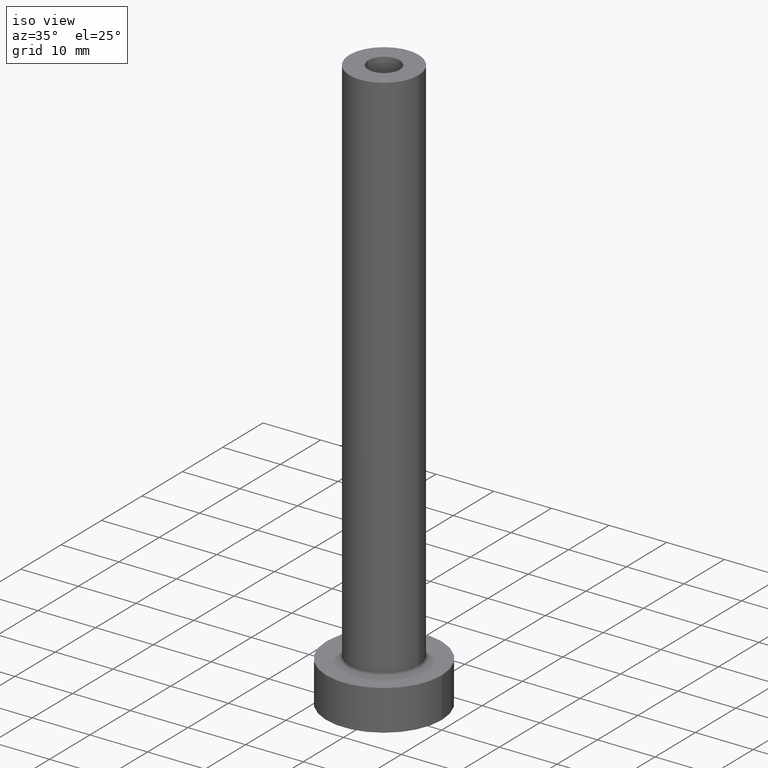
[diagram: clean part render]
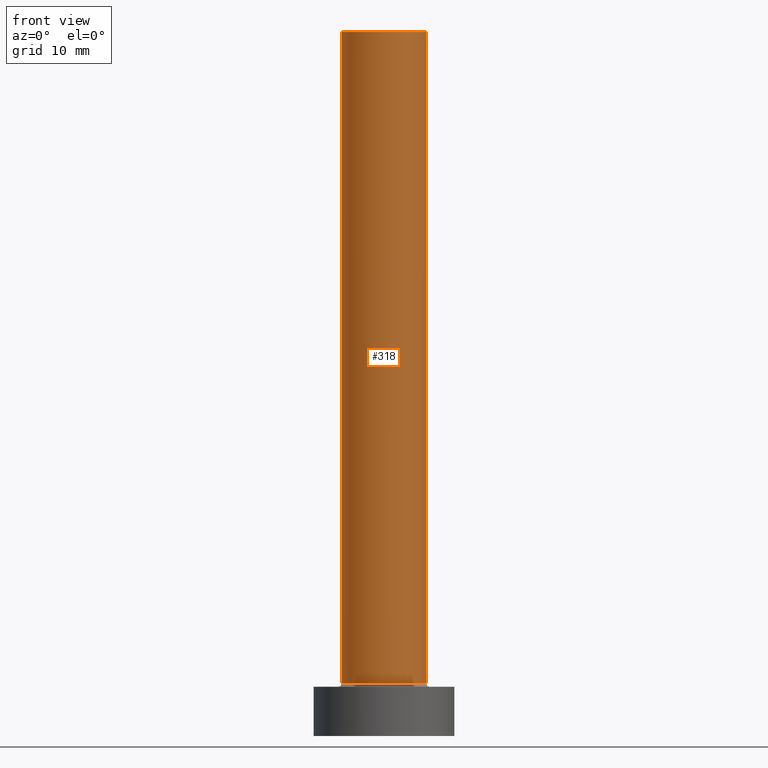
[diagram: tour spotlight — one face highlighted and labeled with its STEP entity id]
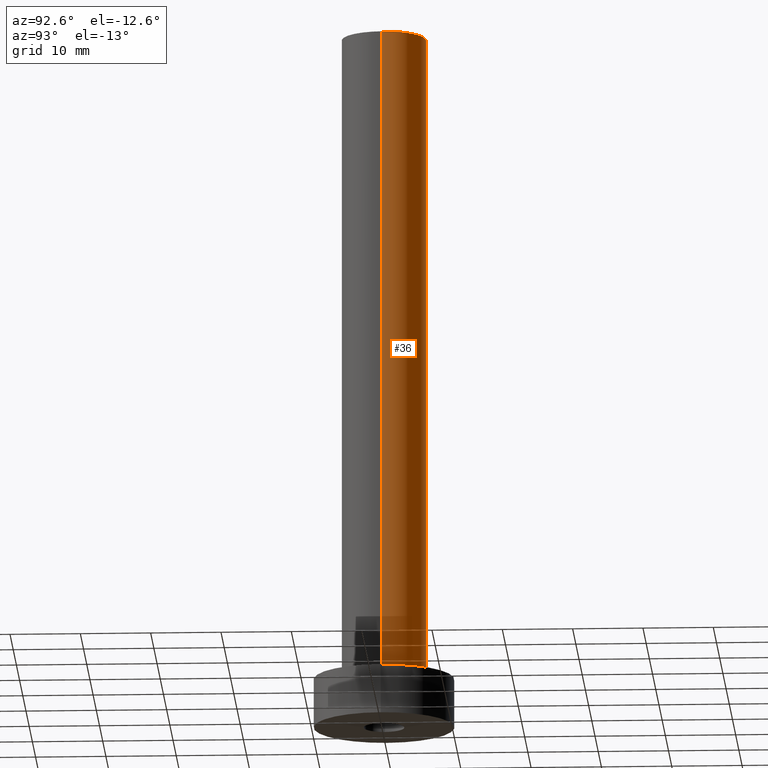
[diagram: tour spotlight — one face highlighted and labeled with its STEP entity id]
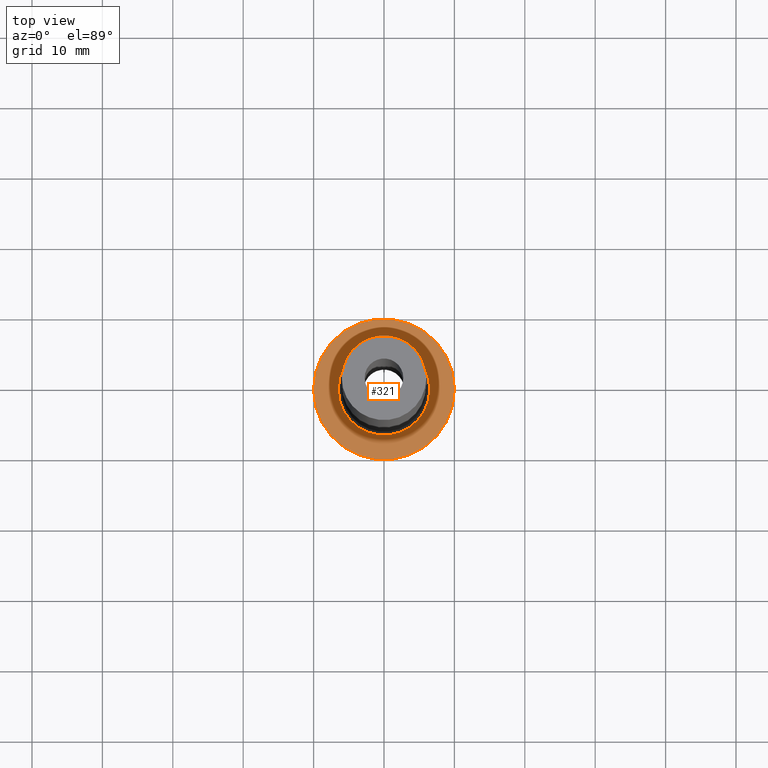
[diagram: tour spotlight — one face highlighted and labeled with its STEP entity id]
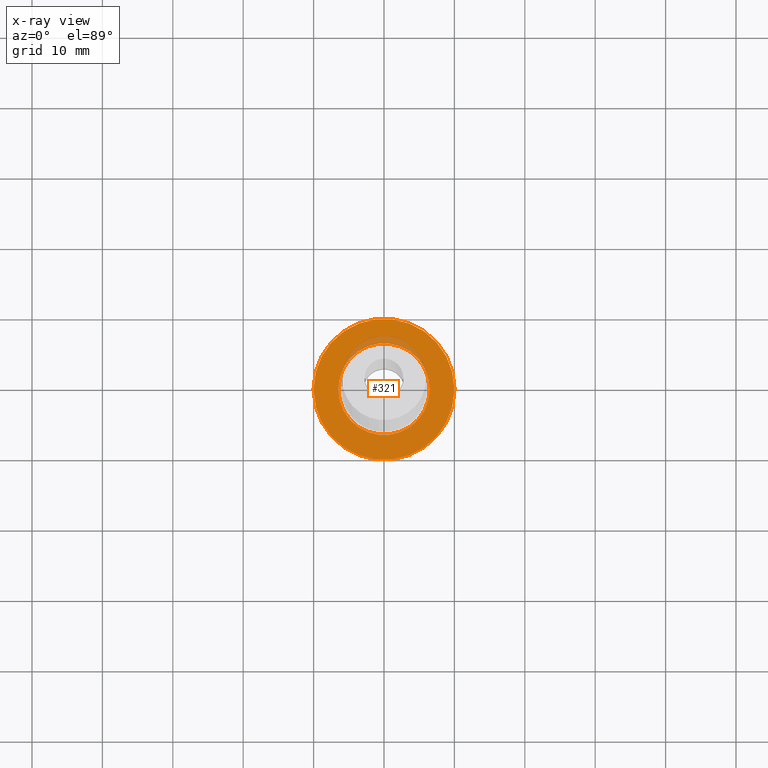
[diagram: x-ray of the same camera — body ghosted, this tour face saturated]
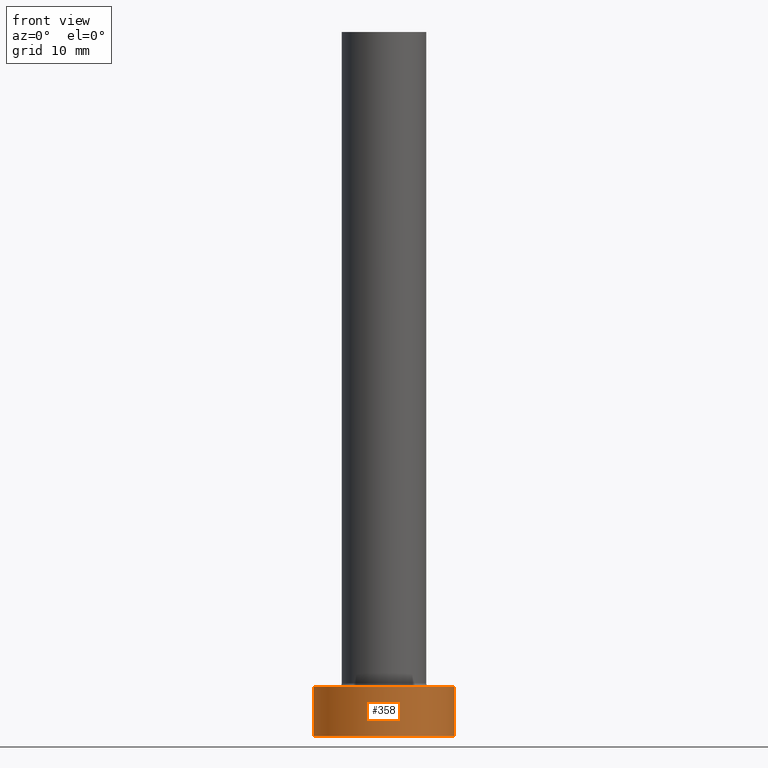
[diagram: tour spotlight — one face highlighted and labeled with its STEP entity id]
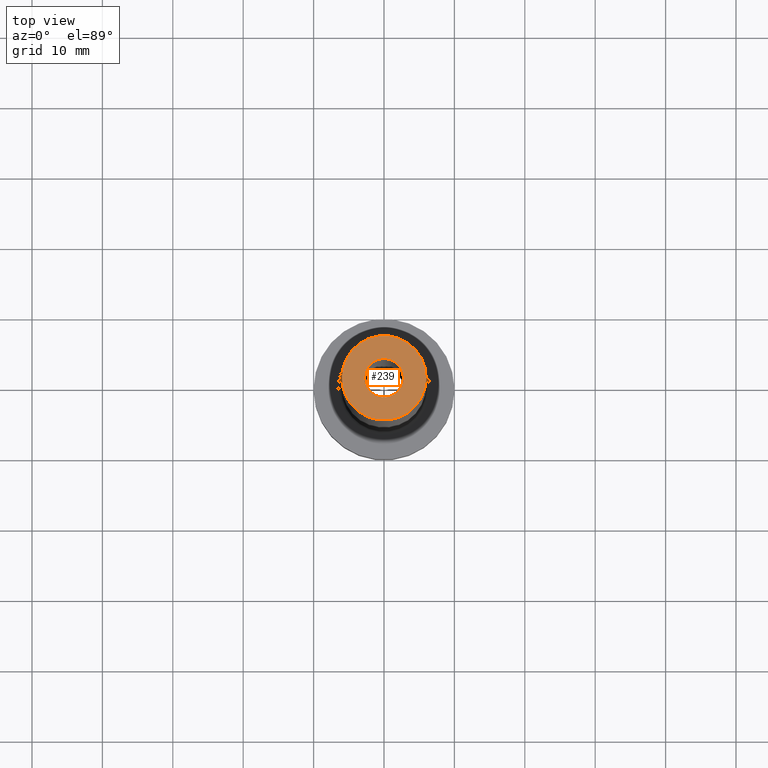
[diagram: tour spotlight — one face highlighted and labeled with its STEP entity id]
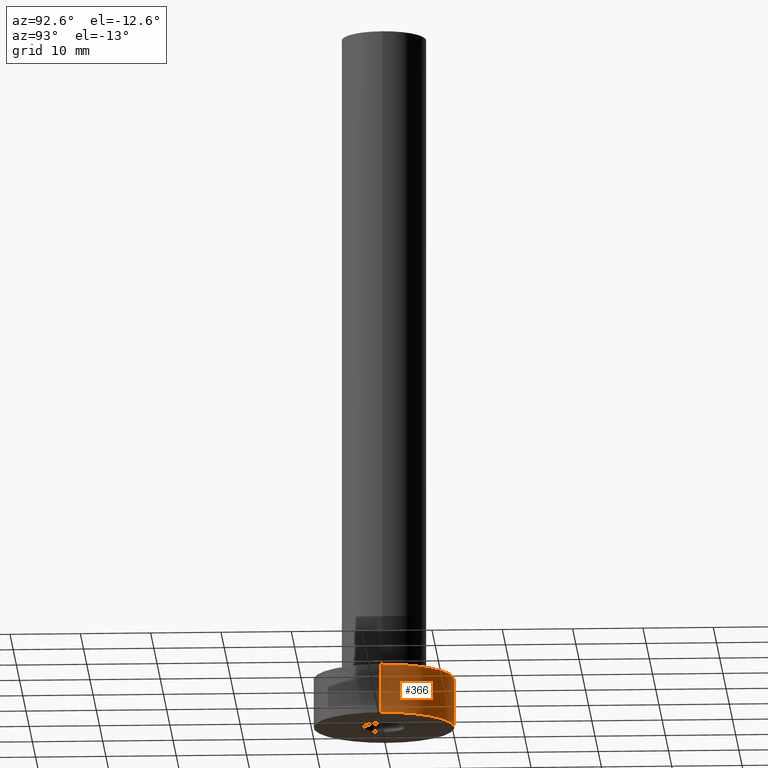
[diagram: tour spotlight — one face highlighted and labeled with its STEP entity id]
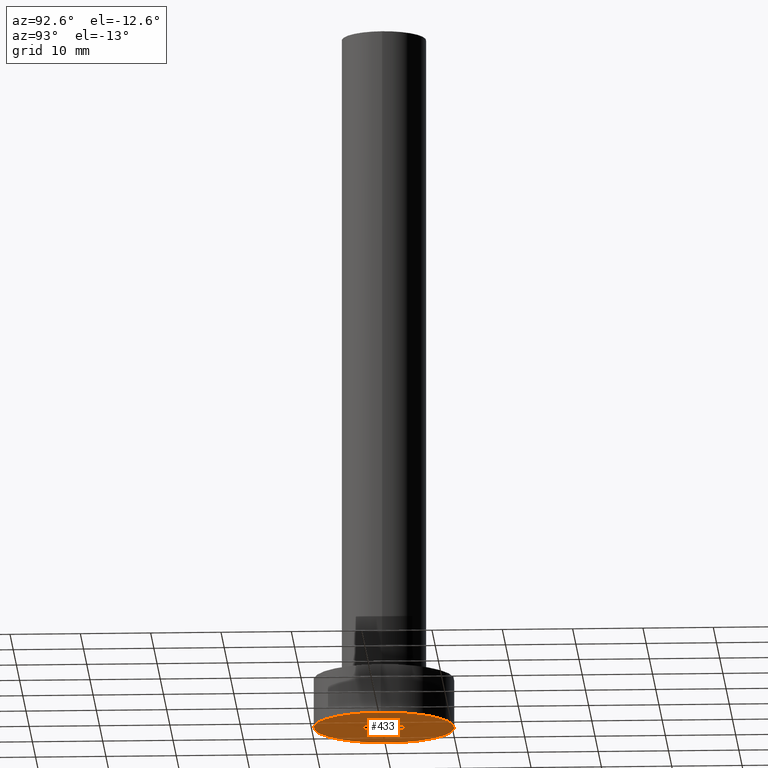
[diagram: tour spotlight — one face highlighted and labeled with its STEP entity id]
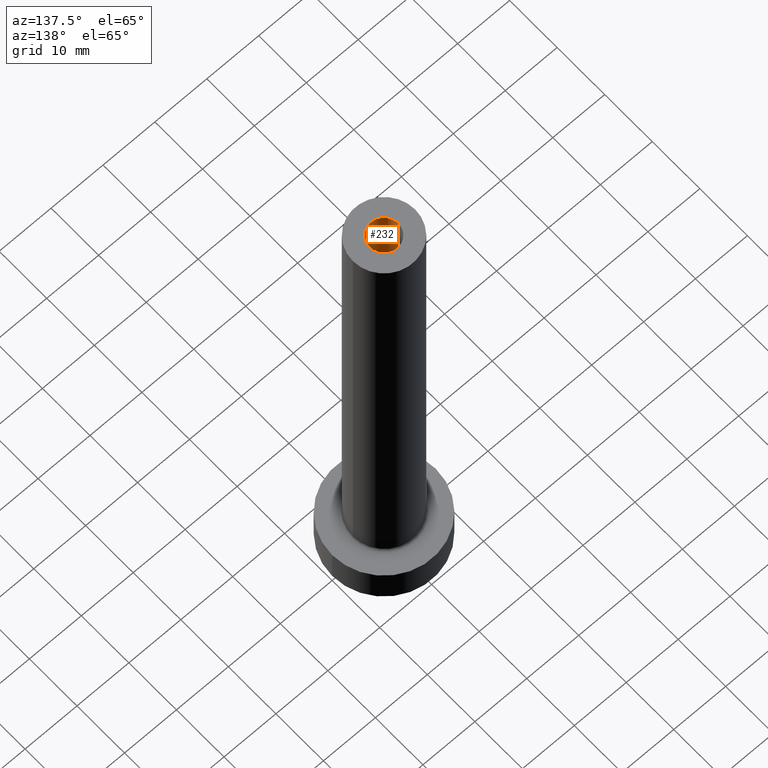
[diagram: tour spotlight — one face highlighted and labeled with its STEP entity id]
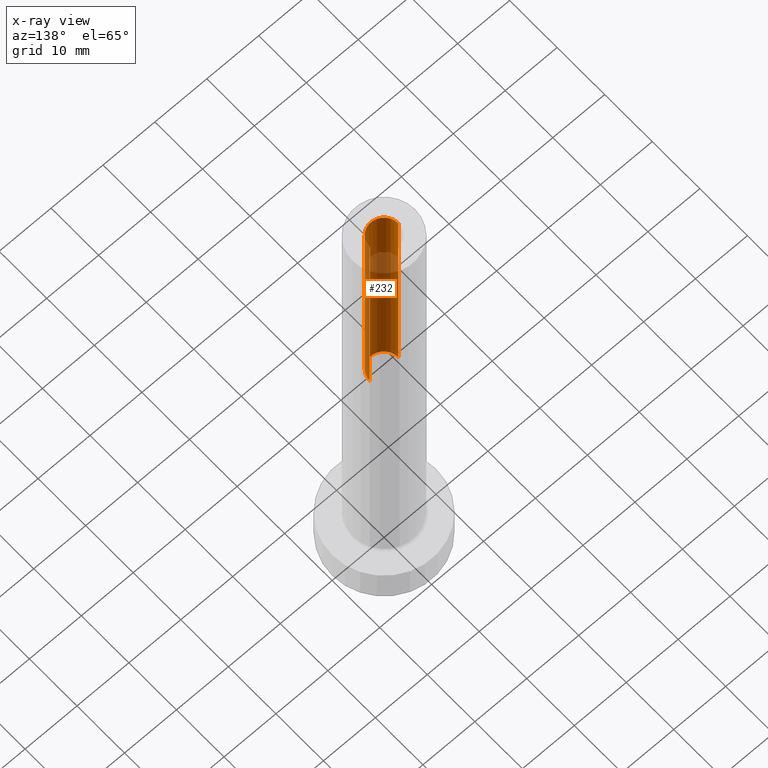
[diagram: x-ray of the same camera — body ghosted, this tour face saturated]
A machine part: a face-by-face anatomy tour. The part has 14 B-rep faces; the first image is the clean iso view, then the 8 largest visible faces are spotlighted one at a time (largest first), each with its STEP entity span.

Face 1 — front view, entity #318. In plain terms, the highlighted cylindrical surface (partial cylindrical patch) has radius 6 mm, axis along (-0, -0, -1).
Definition (entity closure, byte-faithful):
#3 = CARTESIAN_POINT ( 'NONE',  ( 0.000000000000000000, 0.000000000000000000, 100.0000000000000000 ) ) ;
#11 = VERTEX_POINT ( 'NONE', #50 ) ;
#13 = CARTESIAN_POINT ( 'NONE',  ( 0.000000000000000000, 0.000000000000000000, 100.0000000000000000 ) ) ;
#18 = DIRECTION ( 'NONE',  ( -0.000000000000000000, -0.000000000000000000, -1.000000000000000000 ) ) ;
#24 = CARTESIAN_POINT ( 'NONE',  ( 0.000000000000000000, 0.000000000000000000, 7.500000000000007105 ) ) ;
#30 = ORIENTED_EDGE ( 'NONE', *, *, #444, .T. ) ;
#50 = CARTESIAN_POINT ( 'NONE',  ( 6.000000000000000888, 7.347880794884119736E-16, 7.500000000000007105 ) ) ;
#69 = CIRCLE ( 'NONE', #357, 6.000000000000000888 ) ;
#83 = CIRCLE ( 'NONE', #430, 6.000000000000000888 ) ;
#85 = LINE ( 'NONE', #233, #288 ) ;
#99 = CYLINDRICAL_SURFACE ( 'NONE', #417, 6.000000000000000888 ) ;
#128 = CARTESIAN_POINT ( 'NONE',  ( -6.000000000000000888, 0.000000000000000000, 7.500000000000007105 ) ) ;
#133 = DIRECTION ( 'NONE',  ( -0.000000000000000000, -0.000000000000000000, -1.000000000000000000 ) ) ;
#134 = EDGE_CURVE ( 'NONE', #344, #11, #85, .T. ) ;
#141 = EDGE_CURVE ( 'NONE', #199, #11, #83, .T. ) ;
#146 = EDGE_LOOP ( 'NONE', ( #411, #393, #30, #157 ) ) ;
#157 = ORIENTED_EDGE ( 'NONE', *, *, #141, .T. ) ;
#165 = DIRECTION ( 'NONE',  ( 0.000000000000000000, 0.000000000000000000, 1.000000000000000000 ) ) ;
#171 = VERTEX_POINT ( 'NONE', #387 ) ;
#199 = VERTEX_POINT ( 'NONE', #128 ) ;
#203 = VECTOR ( 'NONE', #455, 1000.000000000000000 ) ;
#209 = DIRECTION ( 'NONE',  ( 1.000000000000000000, 0.000000000000000000, 0.000000000000000000 ) ) ;
#233 = CARTESIAN_POINT ( 'NONE',  ( 6.000000000000000888, 7.347880794884119736E-16, 100.0000000000000000 ) ) ;
#284 = FACE_OUTER_BOUND ( 'NONE', #146, .T. ) ;
#288 = VECTOR ( 'NONE', #18, 1000.000000000000000 ) ;
#305 = DIRECTION ( 'NONE',  ( 1.000000000000000000, 0.000000000000000000, 0.000000000000000000 ) ) ;
#306 = CARTESIAN_POINT ( 'NONE',  ( -6.000000000000000888, 0.000000000000000000, 100.0000000000000000 ) ) ;
#311 = DIRECTION ( 'NONE',  ( 0.000000000000000000, 0.000000000000000000, 1.000000000000000000 ) ) ;
#318 = ADVANCED_FACE ( 'NONE', ( #284 ), #99, .T. ) ;
#344 = VERTEX_POINT ( 'NONE', #425 ) ;
#357 = AXIS2_PLACEMENT_3D ( 'NONE', #13, #311, #209 ) ;
#387 = CARTESIAN_POINT ( 'NONE',  ( -6.000000000000000888, 0.000000000000000000, 100.0000000000000000 ) ) ;
#393 = ORIENTED_EDGE ( 'NONE', *, *, #461, .F. ) ;
#411 = ORIENTED_EDGE ( 'NONE', *, *, #134, .F. ) ;
#416 = LINE ( 'NONE', #306, #203 ) ;
#417 = AXIS2_PLACEMENT_3D ( 'NONE', #3, #133, #431 ) ;
#425 = CARTESIAN_POINT ( 'NONE',  ( 6.000000000000000888, 7.347880794884119736E-16, 100.0000000000000000 ) ) ;
#430 = AXIS2_PLACEMENT_3D ( 'NONE', #24, #165, #305 ) ;
#431 = DIRECTION ( 'NONE',  ( -1.000000000000000000, 0.000000000000000000, 0.000000000000000000 ) ) ;
#444 = EDGE_CURVE ( 'NONE', #171, #199, #416, .T. ) ;
#455 = DIRECTION ( 'NONE',  ( -0.000000000000000000, -0.000000000000000000, -1.000000000000000000 ) ) ;
#461 = EDGE_CURVE ( 'NONE', #171, #344, #69, .T. ) ;

Face 2 — auxiliary view, entity #36. In plain terms, the highlighted cylindrical surface (partial cylindrical patch) has radius 6 mm, axis along (-0, -0, -1).
Definition (entity closure, byte-faithful):
#11 = VERTEX_POINT ( 'NONE', #50 ) ;
#18 = DIRECTION ( 'NONE',  ( -0.000000000000000000, -0.000000000000000000, -1.000000000000000000 ) ) ;
#19 = CARTESIAN_POINT ( 'NONE',  ( 0.000000000000000000, 0.000000000000000000, 7.500000000000007105 ) ) ;
#36 = ADVANCED_FACE ( 'NONE', ( #206 ), #263, .T. ) ;
#50 = CARTESIAN_POINT ( 'NONE',  ( 6.000000000000000888, 7.347880794884119736E-16, 7.500000000000007105 ) ) ;
#70 = EDGE_CURVE ( 'NONE', #11, #199, #111, .T. ) ;
#80 = ORIENTED_EDGE ( 'NONE', *, *, #354, .F. ) ;
#85 = LINE ( 'NONE', #233, #288 ) ;
#111 = CIRCLE ( 'NONE', #384, 6.000000000000000888 ) ;
#128 = CARTESIAN_POINT ( 'NONE',  ( -6.000000000000000888, 0.000000000000000000, 7.500000000000007105 ) ) ;
#134 = EDGE_CURVE ( 'NONE', #344, #11, #85, .T. ) ;
#153 = ORIENTED_EDGE ( 'NONE', *, *, #70, .T. ) ;
#169 = CIRCLE ( 'NONE', #432, 6.000000000000000888 ) ;
#171 = VERTEX_POINT ( 'NONE', #387 ) ;
#176 = EDGE_LOOP ( 'NONE', ( #80, #329, #153, #228 ) ) ;
#199 = VERTEX_POINT ( 'NONE', #128 ) ;
#201 = CARTESIAN_POINT ( 'NONE',  ( 0.000000000000000000, 0.000000000000000000, 100.0000000000000000 ) ) ;
#203 = VECTOR ( 'NONE', #455, 1000.000000000000000 ) ;
#206 = FACE_OUTER_BOUND ( 'NONE', #176, .T. ) ;
#227 = DIRECTION ( 'NONE',  ( -0.000000000000000000, -0.000000000000000000, -1.000000000000000000 ) ) ;
#228 = ORIENTED_EDGE ( 'NONE', *, *, #444, .F. ) ;
#233 = CARTESIAN_POINT ( 'NONE',  ( 6.000000000000000888, 7.347880794884119736E-16, 100.0000000000000000 ) ) ;
#263 = CYLINDRICAL_SURFACE ( 'NONE', #404, 6.000000000000000888 ) ;
#265 = DIRECTION ( 'NONE',  ( 1.000000000000000000, 0.000000000000000000, 0.000000000000000000 ) ) ;
#288 = VECTOR ( 'NONE', #18, 1000.000000000000000 ) ;
#306 = CARTESIAN_POINT ( 'NONE',  ( -6.000000000000000888, 0.000000000000000000, 100.0000000000000000 ) ) ;
#329 = ORIENTED_EDGE ( 'NONE', *, *, #134, .T. ) ;
#339 = DIRECTION ( 'NONE',  ( 0.000000000000000000, 0.000000000000000000, 1.000000000000000000 ) ) ;
#344 = VERTEX_POINT ( 'NONE', #425 ) ;
#351 = CARTESIAN_POINT ( 'NONE',  ( 0.000000000000000000, 0.000000000000000000, 100.0000000000000000 ) ) ;
#354 = EDGE_CURVE ( 'NONE', #344, #171, #169, .T. ) ;
#370 = DIRECTION ( 'NONE',  ( -1.000000000000000000, 0.000000000000000000, 0.000000000000000000 ) ) ;
#373 = DIRECTION ( 'NONE',  ( 1.000000000000000000, 0.000000000000000000, 0.000000000000000000 ) ) ;
#384 = AXIS2_PLACEMENT_3D ( 'NONE', #19, #450, #373 ) ;
#387 = CARTESIAN_POINT ( 'NONE',  ( -6.000000000000000888, 0.000000000000000000, 100.0000000000000000 ) ) ;
#404 = AXIS2_PLACEMENT_3D ( 'NONE', #201, #227, #370 ) ;
#416 = LINE ( 'NONE', #306, #203 ) ;
#425 = CARTESIAN_POINT ( 'NONE',  ( 6.000000000000000888, 7.347880794884119736E-16, 100.0000000000000000 ) ) ;
#432 = AXIS2_PLACEMENT_3D ( 'NONE', #351, #339, #265 ) ;
#444 = EDGE_CURVE ( 'NONE', #171, #199, #416, .T. ) ;
#450 = DIRECTION ( 'NONE',  ( 0.000000000000000000, 0.000000000000000000, 1.000000000000000000 ) ) ;
#455 = DIRECTION ( 'NONE',  ( -0.000000000000000000, -0.000000000000000000, -1.000000000000000000 ) ) ;

Face 3 — top view, entity #321. An x-ray twin of the same camera follows (body ghosted, this face saturated) — the face is partly hidden behind the body. In plain terms, the highlighted planar face has unit normal (0, 0, 1).
Definition (entity closure, byte-faithful):
#38 = EDGE_CURVE ( 'NONE', #408, #48, #104, .T. ) ;
#48 = VERTEX_POINT ( 'NONE', #337 ) ;
#49 = ORIENTED_EDGE ( 'NONE', *, *, #213, .T. ) ;
#81 = DIRECTION ( 'NONE',  ( 0.000000000000000000, 0.000000000000000000, 1.000000000000000000 ) ) ;
#84 = EDGE_LOOP ( 'NONE', ( #196, #360 ) ) ;
#91 = DIRECTION ( 'NONE',  ( 1.000000000000000000, 0.000000000000000000, -0.000000000000000000 ) ) ;
#104 = CIRCLE ( 'NONE', #173, 6.500000000000000888 ) ;
#110 = CARTESIAN_POINT ( 'NONE',  ( 0.000000000000000000, 0.000000000000000000, 7.000000000000000000 ) ) ;
#115 = DIRECTION ( 'NONE',  ( 1.000000000000000000, 0.000000000000000000, 0.000000000000000000 ) ) ;
#139 = CARTESIAN_POINT ( 'NONE',  ( 6.500000000000000888, 0.000000000000000000, 7.000000000000002665 ) ) ;
#147 = CARTESIAN_POINT ( 'NONE',  ( -10.00000000000000000, 0.000000000000000000, 7.000000000000000000 ) ) ;
#172 = DIRECTION ( 'NONE',  ( 0.000000000000000000, 0.000000000000000000, 1.000000000000000000 ) ) ;
#173 = AXIS2_PLACEMENT_3D ( 'NONE', #407, #340, #198 ) ;
#179 = DIRECTION ( 'NONE',  ( 1.000000000000000000, 0.000000000000000000, 0.000000000000000000 ) ) ;
#185 = VERTEX_POINT ( 'NONE', #426 ) ;
#196 = ORIENTED_EDGE ( 'NONE', *, *, #38, .T. ) ;
#198 = DIRECTION ( 'NONE',  ( 1.000000000000000000, 0.000000000000000000, 0.000000000000000000 ) ) ;
#213 = EDGE_CURVE ( 'NONE', #395, #185, #262, .T. ) ;
#216 = CARTESIAN_POINT ( 'NONE',  ( 0.000000000000000000, 0.000000000000000000, 7.000000000000000000 ) ) ;
#241 = AXIS2_PLACEMENT_3D ( 'NONE', #216, #172, #91 ) ;
#258 = DIRECTION ( 'NONE',  ( -0.000000000000000000, -0.000000000000000000, -1.000000000000000000 ) ) ;
#262 = CIRCLE ( 'NONE', #457, 10.00000000000000000 ) ;
#267 = FACE_OUTER_BOUND ( 'NONE', #291, .T. ) ;
#274 = PLANE ( 'NONE',  #241 ) ;
#276 = CARTESIAN_POINT ( 'NONE',  ( 0.000000000000000000, 0.000000000000000000, 7.000000000000000000 ) ) ;
#291 = EDGE_LOOP ( 'NONE', ( #49, #293 ) ) ;
#293 = ORIENTED_EDGE ( 'NONE', *, *, #375, .T. ) ;
#299 = CIRCLE ( 'NONE', #362, 10.00000000000000000 ) ;
#321 = ADVANCED_FACE ( 'NONE', ( #346, #267 ), #274, .T. ) ;
#331 = CIRCLE ( 'NONE', #372, 6.500000000000000888 ) ;
#337 = CARTESIAN_POINT ( 'NONE',  ( -6.500000000000000888, 7.960204194457796463E-16, 7.000000000000002665 ) ) ;
#340 = DIRECTION ( 'NONE',  ( -0.000000000000000000, -0.000000000000000000, -1.000000000000000000 ) ) ;
#343 = DIRECTION ( 'NONE',  ( 0.000000000000000000, 0.000000000000000000, 1.000000000000000000 ) ) ;
#346 = FACE_BOUND ( 'NONE', #84, .T. ) ;
#360 = ORIENTED_EDGE ( 'NONE', *, *, #385, .T. ) ;
#362 = AXIS2_PLACEMENT_3D ( 'NONE', #442, #81, #115 ) ;
#368 = DIRECTION ( 'NONE',  ( 1.000000000000000000, 0.000000000000000000, 0.000000000000000000 ) ) ;
#372 = AXIS2_PLACEMENT_3D ( 'NONE', #110, #258, #368 ) ;
#375 = EDGE_CURVE ( 'NONE', #185, #395, #299, .T. ) ;
#385 = EDGE_CURVE ( 'NONE', #48, #408, #331, .T. ) ;
#395 = VERTEX_POINT ( 'NONE', #147 ) ;
#407 = CARTESIAN_POINT ( 'NONE',  ( 0.000000000000000000, 0.000000000000000000, 7.000000000000000000 ) ) ;
#408 = VERTEX_POINT ( 'NONE', #139 ) ;
#426 = CARTESIAN_POINT ( 'NONE',  ( 10.00000000000000000, 1.224646799147353256E-15, 7.000000000000000000 ) ) ;
#442 = CARTESIAN_POINT ( 'NONE',  ( 0.000000000000000000, 0.000000000000000000, 7.000000000000000000 ) ) ;
#457 = AXIS2_PLACEMENT_3D ( 'NONE', #276, #343, #179 ) ;

Face 4 — front view, entity #358. In plain terms, the highlighted cylindrical surface (partial cylindrical patch) has radius 10 mm, axis along (-0, -0, -1).
Definition (entity closure, byte-faithful):
#10 = CARTESIAN_POINT ( 'NONE',  ( -10.00000000000000000, 0.000000000000000000, 7.000000000000000000 ) ) ;
#20 = VERTEX_POINT ( 'NONE', #259 ) ;
#43 = LINE ( 'NONE', #118, #180 ) ;
#53 = FACE_OUTER_BOUND ( 'NONE', #328, .T. ) ;
#68 = AXIS2_PLACEMENT_3D ( 'NONE', #240, #312, #92 ) ;
#82 = EDGE_CURVE ( 'NONE', #185, #376, #43, .T. ) ;
#88 = CARTESIAN_POINT ( 'NONE',  ( 0.000000000000000000, 0.000000000000000000, 7.000000000000000000 ) ) ;
#92 = DIRECTION ( 'NONE',  ( 1.000000000000000000, 0.000000000000000000, 0.000000000000000000 ) ) ;
#118 = CARTESIAN_POINT ( 'NONE',  ( 10.00000000000000000, 1.224646799147353256E-15, 7.000000000000000000 ) ) ;
#147 = CARTESIAN_POINT ( 'NONE',  ( -10.00000000000000000, 0.000000000000000000, 7.000000000000000000 ) ) ;
#149 = ORIENTED_EDGE ( 'NONE', *, *, #186, .T. ) ;
#156 = CIRCLE ( 'NONE', #68, 10.00000000000000000 ) ;
#164 = DIRECTION ( 'NONE',  ( -0.000000000000000000, -0.000000000000000000, -1.000000000000000000 ) ) ;
#179 = DIRECTION ( 'NONE',  ( 1.000000000000000000, 0.000000000000000000, 0.000000000000000000 ) ) ;
#180 = VECTOR ( 'NONE', #412, 1000.000000000000000 ) ;
#185 = VERTEX_POINT ( 'NONE', #426 ) ;
#186 = EDGE_CURVE ( 'NONE', #20, #376, #156, .T. ) ;
#212 = VECTOR ( 'NONE', #222, 1000.000000000000000 ) ;
#213 = EDGE_CURVE ( 'NONE', #395, #185, #262, .T. ) ;
#222 = DIRECTION ( 'NONE',  ( -0.000000000000000000, -0.000000000000000000, -1.000000000000000000 ) ) ;
#240 = CARTESIAN_POINT ( 'NONE',  ( 0.000000000000000000, 0.000000000000000000, 0.000000000000000000 ) ) ;
#243 = ORIENTED_EDGE ( 'NONE', *, *, #213, .F. ) ;
#255 = CARTESIAN_POINT ( 'NONE',  ( 10.00000000000000000, 1.224646799147353256E-15, 0.000000000000000000 ) ) ;
#259 = CARTESIAN_POINT ( 'NONE',  ( -10.00000000000000000, 0.000000000000000000, 0.000000000000000000 ) ) ;
#262 = CIRCLE ( 'NONE', #457, 10.00000000000000000 ) ;
#276 = CARTESIAN_POINT ( 'NONE',  ( 0.000000000000000000, 0.000000000000000000, 7.000000000000000000 ) ) ;
#285 = AXIS2_PLACEMENT_3D ( 'NONE', #88, #164, #342 ) ;
#294 = LINE ( 'NONE', #10, #212 ) ;
#304 = CYLINDRICAL_SURFACE ( 'NONE', #285, 10.00000000000000000 ) ;
#312 = DIRECTION ( 'NONE',  ( 0.000000000000000000, 0.000000000000000000, 1.000000000000000000 ) ) ;
#328 = EDGE_LOOP ( 'NONE', ( #445, #243, #334, #149 ) ) ;
#334 = ORIENTED_EDGE ( 'NONE', *, *, #401, .T. ) ;
#342 = DIRECTION ( 'NONE',  ( -1.000000000000000000, 0.000000000000000000, 0.000000000000000000 ) ) ;
#343 = DIRECTION ( 'NONE',  ( 0.000000000000000000, 0.000000000000000000, 1.000000000000000000 ) ) ;
#358 = ADVANCED_FACE ( 'NONE', ( #53 ), #304, .T. ) ;
#376 = VERTEX_POINT ( 'NONE', #255 ) ;
#395 = VERTEX_POINT ( 'NONE', #147 ) ;
#401 = EDGE_CURVE ( 'NONE', #395, #20, #294, .T. ) ;
#412 = DIRECTION ( 'NONE',  ( -0.000000000000000000, -0.000000000000000000, -1.000000000000000000 ) ) ;
#426 = CARTESIAN_POINT ( 'NONE',  ( 10.00000000000000000, 1.224646799147353256E-15, 7.000000000000000000 ) ) ;
#445 = ORIENTED_EDGE ( 'NONE', *, *, #82, .F. ) ;
#457 = AXIS2_PLACEMENT_3D ( 'NONE', #276, #343, #179 ) ;

Face 5 — top view, entity #239. In plain terms, the highlighted planar face has unit normal (0, 0, 1).
Definition (entity closure, byte-faithful):
#2 = PLANE ( 'NONE',  #356 ) ;
#13 = CARTESIAN_POINT ( 'NONE',  ( 0.000000000000000000, 0.000000000000000000, 100.0000000000000000 ) ) ;
#39 = CIRCLE ( 'NONE', #396, 2.750000000000000000 ) ;
#51 = CIRCLE ( 'NONE', #310, 2.750000000000000000 ) ;
#60 = ORIENTED_EDGE ( 'NONE', *, *, #345, .F. ) ;
#64 = DIRECTION ( 'NONE',  ( 0.000000000000000000, 0.000000000000000000, 1.000000000000000000 ) ) ;
#69 = CIRCLE ( 'NONE', #357, 6.000000000000000888 ) ;
#76 = EDGE_LOOP ( 'NONE', ( #371, #60 ) ) ;
#95 = DIRECTION ( 'NONE',  ( 1.000000000000000000, 0.000000000000000000, 0.000000000000000000 ) ) ;
#98 = DIRECTION ( 'NONE',  ( 1.000000000000000000, 0.000000000000000000, -0.000000000000000000 ) ) ;
#127 = FACE_BOUND ( 'NONE', #76, .T. ) ;
#148 = VERTEX_POINT ( 'NONE', #296 ) ;
#169 = CIRCLE ( 'NONE', #432, 6.000000000000000888 ) ;
#171 = VERTEX_POINT ( 'NONE', #387 ) ;
#209 = DIRECTION ( 'NONE',  ( 1.000000000000000000, 0.000000000000000000, 0.000000000000000000 ) ) ;
#235 = DIRECTION ( 'NONE',  ( 1.000000000000000000, 0.000000000000000000, 0.000000000000000000 ) ) ;
#238 = DIRECTION ( 'NONE',  ( 0.000000000000000000, 0.000000000000000000, 1.000000000000000000 ) ) ;
#239 = ADVANCED_FACE ( 'NONE', ( #127, #275 ), #2, .T. ) ;
#265 = DIRECTION ( 'NONE',  ( 1.000000000000000000, 0.000000000000000000, 0.000000000000000000 ) ) ;
#275 = FACE_OUTER_BOUND ( 'NONE', #374, .T. ) ;
#277 = DIRECTION ( 'NONE',  ( 0.000000000000000000, 0.000000000000000000, 1.000000000000000000 ) ) ;
#292 = ORIENTED_EDGE ( 'NONE', *, *, #461, .T. ) ;
#296 = CARTESIAN_POINT ( 'NONE',  ( -2.750000000000000000, 0.000000000000000000, 100.0000000000000000 ) ) ;
#310 = AXIS2_PLACEMENT_3D ( 'NONE', #391, #64, #235 ) ;
#311 = DIRECTION ( 'NONE',  ( 0.000000000000000000, 0.000000000000000000, 1.000000000000000000 ) ) ;
#320 = ORIENTED_EDGE ( 'NONE', *, *, #354, .T. ) ;
#325 = VERTEX_POINT ( 'NONE', #380 ) ;
#336 = EDGE_CURVE ( 'NONE', #148, #325, #39, .T. ) ;
#339 = DIRECTION ( 'NONE',  ( 0.000000000000000000, 0.000000000000000000, 1.000000000000000000 ) ) ;
#344 = VERTEX_POINT ( 'NONE', #425 ) ;
#345 = EDGE_CURVE ( 'NONE', #325, #148, #51, .T. ) ;
#351 = CARTESIAN_POINT ( 'NONE',  ( 0.000000000000000000, 0.000000000000000000, 100.0000000000000000 ) ) ;
#354 = EDGE_CURVE ( 'NONE', #344, #171, #169, .T. ) ;
#356 = AXIS2_PLACEMENT_3D ( 'NONE', #428, #238, #98 ) ;
#357 = AXIS2_PLACEMENT_3D ( 'NONE', #13, #311, #209 ) ;
#371 = ORIENTED_EDGE ( 'NONE', *, *, #336, .F. ) ;
#374 = EDGE_LOOP ( 'NONE', ( #292, #320 ) ) ;
#380 = CARTESIAN_POINT ( 'NONE',  ( 2.750000000000000000, 3.367778697655220519E-16, 100.0000000000000000 ) ) ;
#387 = CARTESIAN_POINT ( 'NONE',  ( -6.000000000000000888, 0.000000000000000000, 100.0000000000000000 ) ) ;
#391 = CARTESIAN_POINT ( 'NONE',  ( 0.000000000000000000, 0.000000000000000000, 100.0000000000000000 ) ) ;
#396 = AXIS2_PLACEMENT_3D ( 'NONE', #418, #277, #95 ) ;
#418 = CARTESIAN_POINT ( 'NONE',  ( 0.000000000000000000, 0.000000000000000000, 100.0000000000000000 ) ) ;
#425 = CARTESIAN_POINT ( 'NONE',  ( 6.000000000000000888, 7.347880794884119736E-16, 100.0000000000000000 ) ) ;
#428 = CARTESIAN_POINT ( 'NONE',  ( 0.000000000000000000, 0.000000000000000000, 100.0000000000000000 ) ) ;
#432 = AXIS2_PLACEMENT_3D ( 'NONE', #351, #339, #265 ) ;
#461 = EDGE_CURVE ( 'NONE', #171, #344, #69, .T. ) ;

Face 6 — auxiliary view, entity #366. In plain terms, the highlighted cylindrical surface (partial cylindrical patch) has radius 10 mm, axis along (-0, -0, -1).
Definition (entity closure, byte-faithful):
#9 = DIRECTION ( 'NONE',  ( -1.000000000000000000, 0.000000000000000000, 0.000000000000000000 ) ) ;
#10 = CARTESIAN_POINT ( 'NONE',  ( -10.00000000000000000, 0.000000000000000000, 7.000000000000000000 ) ) ;
#20 = VERTEX_POINT ( 'NONE', #259 ) ;
#21 = EDGE_CURVE ( 'NONE', #376, #20, #47, .T. ) ;
#23 = FACE_OUTER_BOUND ( 'NONE', #333, .T. ) ;
#37 = CARTESIAN_POINT ( 'NONE',  ( 0.000000000000000000, 0.000000000000000000, 7.000000000000000000 ) ) ;
#43 = LINE ( 'NONE', #118, #180 ) ;
#47 = CIRCLE ( 'NONE', #249, 10.00000000000000000 ) ;
#71 = DIRECTION ( 'NONE',  ( -0.000000000000000000, -0.000000000000000000, -1.000000000000000000 ) ) ;
#75 = ORIENTED_EDGE ( 'NONE', *, *, #375, .F. ) ;
#77 = DIRECTION ( 'NONE',  ( 1.000000000000000000, 0.000000000000000000, 0.000000000000000000 ) ) ;
#81 = DIRECTION ( 'NONE',  ( 0.000000000000000000, 0.000000000000000000, 1.000000000000000000 ) ) ;
#82 = EDGE_CURVE ( 'NONE', #185, #376, #43, .T. ) ;
#115 = DIRECTION ( 'NONE',  ( 1.000000000000000000, 0.000000000000000000, 0.000000000000000000 ) ) ;
#118 = CARTESIAN_POINT ( 'NONE',  ( 10.00000000000000000, 1.224646799147353256E-15, 7.000000000000000000 ) ) ;
#147 = CARTESIAN_POINT ( 'NONE',  ( -10.00000000000000000, 0.000000000000000000, 7.000000000000000000 ) ) ;
#152 = CARTESIAN_POINT ( 'NONE',  ( 0.000000000000000000, 0.000000000000000000, 0.000000000000000000 ) ) ;
#180 = VECTOR ( 'NONE', #412, 1000.000000000000000 ) ;
#185 = VERTEX_POINT ( 'NONE', #426 ) ;
#187 = ORIENTED_EDGE ( 'NONE', *, *, #82, .T. ) ;
#211 = AXIS2_PLACEMENT_3D ( 'NONE', #37, #71, #9 ) ;
#212 = VECTOR ( 'NONE', #222, 1000.000000000000000 ) ;
#222 = DIRECTION ( 'NONE',  ( -0.000000000000000000, -0.000000000000000000, -1.000000000000000000 ) ) ;
#249 = AXIS2_PLACEMENT_3D ( 'NONE', #152, #300, #77 ) ;
#255 = CARTESIAN_POINT ( 'NONE',  ( 10.00000000000000000, 1.224646799147353256E-15, 0.000000000000000000 ) ) ;
#259 = CARTESIAN_POINT ( 'NONE',  ( -10.00000000000000000, 0.000000000000000000, 0.000000000000000000 ) ) ;
#282 = CYLINDRICAL_SURFACE ( 'NONE', #211, 10.00000000000000000 ) ;
#294 = LINE ( 'NONE', #10, #212 ) ;
#299 = CIRCLE ( 'NONE', #362, 10.00000000000000000 ) ;
#300 = DIRECTION ( 'NONE',  ( 0.000000000000000000, 0.000000000000000000, 1.000000000000000000 ) ) ;
#333 = EDGE_LOOP ( 'NONE', ( #75, #187, #415, #406 ) ) ;
#362 = AXIS2_PLACEMENT_3D ( 'NONE', #442, #81, #115 ) ;
#366 = ADVANCED_FACE ( 'NONE', ( #23 ), #282, .T. ) ;
#375 = EDGE_CURVE ( 'NONE', #185, #395, #299, .T. ) ;
#376 = VERTEX_POINT ( 'NONE', #255 ) ;
#395 = VERTEX_POINT ( 'NONE', #147 ) ;
#401 = EDGE_CURVE ( 'NONE', #395, #20, #294, .T. ) ;
#406 = ORIENTED_EDGE ( 'NONE', *, *, #401, .F. ) ;
#412 = DIRECTION ( 'NONE',  ( -0.000000000000000000, -0.000000000000000000, -1.000000000000000000 ) ) ;
#415 = ORIENTED_EDGE ( 'NONE', *, *, #21, .T. ) ;
#426 = CARTESIAN_POINT ( 'NONE',  ( 10.00000000000000000, 1.224646799147353256E-15, 7.000000000000000000 ) ) ;
#442 = CARTESIAN_POINT ( 'NONE',  ( 0.000000000000000000, 0.000000000000000000, 7.000000000000000000 ) ) ;

Face 7 — auxiliary view, entity #433. In plain terms, the highlighted planar face has unit normal (0, 0, 1).
Definition (entity closure, byte-faithful):
#14 = EDGE_LOOP ( 'NONE', ( #193, #454 ) ) ;
#16 = AXIS2_PLACEMENT_3D ( 'NONE', #223, #195, #120 ) ;
#20 = VERTEX_POINT ( 'NONE', #259 ) ;
#21 = EDGE_CURVE ( 'NONE', #376, #20, #47, .T. ) ;
#28 = AXIS2_PLACEMENT_3D ( 'NONE', #150, #451, #363 ) ;
#42 = ORIENTED_EDGE ( 'NONE', *, *, #57, .F. ) ;
#47 = CIRCLE ( 'NONE', #249, 10.00000000000000000 ) ;
#57 = EDGE_CURVE ( 'NONE', #448, #155, #436, .T. ) ;
#65 = CARTESIAN_POINT ( 'NONE',  ( -2.899999999999999911, 0.000000000000000000, 0.000000000000000000 ) ) ;
#68 = AXIS2_PLACEMENT_3D ( 'NONE', #240, #312, #92 ) ;
#77 = DIRECTION ( 'NONE',  ( 1.000000000000000000, 0.000000000000000000, 0.000000000000000000 ) ) ;
#79 = CARTESIAN_POINT ( 'NONE',  ( 0.000000000000000000, 0.000000000000000000, 0.000000000000000000 ) ) ;
#92 = DIRECTION ( 'NONE',  ( 1.000000000000000000, 0.000000000000000000, 0.000000000000000000 ) ) ;
#120 = DIRECTION ( 'NONE',  ( 1.000000000000000000, 0.000000000000000000, 0.000000000000000000 ) ) ;
#125 = CARTESIAN_POINT ( 'NONE',  ( 2.899999999999999911, 3.551475717527323832E-16, 0.000000000000000000 ) ) ;
#150 = CARTESIAN_POINT ( 'NONE',  ( 0.000000000000000000, 0.000000000000000000, 0.000000000000000000 ) ) ;
#152 = CARTESIAN_POINT ( 'NONE',  ( 0.000000000000000000, 0.000000000000000000, 0.000000000000000000 ) ) ;
#155 = VERTEX_POINT ( 'NONE', #65 ) ;
#156 = CIRCLE ( 'NONE', #68, 10.00000000000000000 ) ;
#186 = EDGE_CURVE ( 'NONE', #20, #376, #156, .T. ) ;
#188 = FACE_OUTER_BOUND ( 'NONE', #14, .T. ) ;
#193 = ORIENTED_EDGE ( 'NONE', *, *, #186, .F. ) ;
#195 = DIRECTION ( 'NONE',  ( -0.000000000000000000, -0.000000000000000000, -1.000000000000000000 ) ) ;
#223 = CARTESIAN_POINT ( 'NONE',  ( 0.000000000000000000, 0.000000000000000000, 0.000000000000000000 ) ) ;
#240 = CARTESIAN_POINT ( 'NONE',  ( 0.000000000000000000, 0.000000000000000000, 0.000000000000000000 ) ) ;
#249 = AXIS2_PLACEMENT_3D ( 'NONE', #152, #300, #77 ) ;
#255 = CARTESIAN_POINT ( 'NONE',  ( 10.00000000000000000, 1.224646799147353256E-15, 0.000000000000000000 ) ) ;
#259 = CARTESIAN_POINT ( 'NONE',  ( -10.00000000000000000, 0.000000000000000000, 0.000000000000000000 ) ) ;
#270 = CIRCLE ( 'NONE', #16, 2.899999999999999911 ) ;
#289 = PLANE ( 'NONE',  #28 ) ;
#300 = DIRECTION ( 'NONE',  ( 0.000000000000000000, 0.000000000000000000, 1.000000000000000000 ) ) ;
#312 = DIRECTION ( 'NONE',  ( 0.000000000000000000, 0.000000000000000000, 1.000000000000000000 ) ) ;
#324 = FACE_BOUND ( 'NONE', #364, .T. ) ;
#332 = DIRECTION ( 'NONE',  ( -0.000000000000000000, -0.000000000000000000, -1.000000000000000000 ) ) ;
#341 = AXIS2_PLACEMENT_3D ( 'NONE', #79, #332, #414 ) ;
#363 = DIRECTION ( 'NONE',  ( 1.000000000000000000, 0.000000000000000000, -0.000000000000000000 ) ) ;
#364 = EDGE_LOOP ( 'NONE', ( #443, #42 ) ) ;
#376 = VERTEX_POINT ( 'NONE', #255 ) ;
#409 = EDGE_CURVE ( 'NONE', #155, #448, #270, .T. ) ;
#414 = DIRECTION ( 'NONE',  ( 1.000000000000000000, 0.000000000000000000, 0.000000000000000000 ) ) ;
#433 = ADVANCED_FACE ( 'NONE', ( #324, #188 ), #289, .F. ) ;
#436 = CIRCLE ( 'NONE', #341, 2.899999999999999911 ) ;
#443 = ORIENTED_EDGE ( 'NONE', *, *, #409, .F. ) ;
#448 = VERTEX_POINT ( 'NONE', #125 ) ;
#451 = DIRECTION ( 'NONE',  ( 0.000000000000000000, 0.000000000000000000, 1.000000000000000000 ) ) ;
#454 = ORIENTED_EDGE ( 'NONE', *, *, #21, .F. ) ;

Face 8 — auxiliary view, entity #232. An x-ray twin of the same camera follows (body ghosted, this face saturated) — the face is partly hidden behind the body. In plain terms, the highlighted cylindrical surface (edge-blend (fillet) strip) has radius 2.75 mm, axis along (0, 0, -1).
Definition (entity closure, byte-faithful):
#5 = ORIENTED_EDGE ( 'NONE', *, *, #101, .T. ) ;
#32 = VECTOR ( 'NONE', #119, 1000.000000000000000 ) ;
#33 = DIRECTION ( 'NONE',  ( 0.000000000000000000, 0.000000000000000000, -1.000000000000000000 ) ) ;
#39 = CIRCLE ( 'NONE', #396, 2.750000000000000000 ) ;
#40 = ORIENTED_EDGE ( 'NONE', *, *, #167, .F. ) ;
#95 = DIRECTION ( 'NONE',  ( 1.000000000000000000, 0.000000000000000000, 0.000000000000000000 ) ) ;
#100 = CIRCLE ( 'NONE', #316, 2.750000000000000000 ) ;
#101 = EDGE_CURVE ( 'NONE', #325, #359, #230, .T. ) ;
#119 = DIRECTION ( 'NONE',  ( 0.000000000000000000, 0.000000000000000000, -1.000000000000000000 ) ) ;
#131 = VECTOR ( 'NONE', #236, 1000.000000000000000 ) ;
#132 = LINE ( 'NONE', #315, #131 ) ;
#148 = VERTEX_POINT ( 'NONE', #296 ) ;
#167 = EDGE_CURVE ( 'NONE', #271, #359, #100, .T. ) ;
#168 = CYLINDRICAL_SURFACE ( 'NONE', #389, 2.750000000000000000 ) ;
#190 = ORIENTED_EDGE ( 'NONE', *, *, #301, .F. ) ;
#197 = EDGE_LOOP ( 'NONE', ( #254, #5, #40, #190 ) ) ;
#205 = CARTESIAN_POINT ( 'NONE',  ( 2.750000000000000000, 3.367778697655220519E-16, 55.00000000000000711 ) ) ;
#217 = CARTESIAN_POINT ( 'NONE',  ( -2.750000000000000000, 0.000000000000000000, 55.00000000000000711 ) ) ;
#230 = LINE ( 'NONE', #302, #32 ) ;
#232 = ADVANCED_FACE ( 'NONE', ( #313 ), #168, .F. ) ;
#236 = DIRECTION ( 'NONE',  ( 0.000000000000000000, 0.000000000000000000, -1.000000000000000000 ) ) ;
#254 = ORIENTED_EDGE ( 'NONE', *, *, #336, .T. ) ;
#271 = VERTEX_POINT ( 'NONE', #217 ) ;
#277 = DIRECTION ( 'NONE',  ( 0.000000000000000000, 0.000000000000000000, 1.000000000000000000 ) ) ;
#281 = DIRECTION ( 'NONE',  ( -1.000000000000000000, 0.000000000000000000, 0.000000000000000000 ) ) ;
#296 = CARTESIAN_POINT ( 'NONE',  ( -2.750000000000000000, 0.000000000000000000, 100.0000000000000000 ) ) ;
#301 = EDGE_CURVE ( 'NONE', #148, #271, #132, .T. ) ;
#302 = CARTESIAN_POINT ( 'NONE',  ( 2.750000000000000000, 3.367778697655220519E-16, 100.0000000000000000 ) ) ;
#313 = FACE_OUTER_BOUND ( 'NONE', #197, .T. ) ;
#315 = CARTESIAN_POINT ( 'NONE',  ( -2.750000000000000000, 0.000000000000000000, 100.0000000000000000 ) ) ;
#316 = AXIS2_PLACEMENT_3D ( 'NONE', #319, #392, #421 ) ;
#319 = CARTESIAN_POINT ( 'NONE',  ( 0.000000000000000000, 0.000000000000000000, 55.00000000000000711 ) ) ;
#325 = VERTEX_POINT ( 'NONE', #380 ) ;
#336 = EDGE_CURVE ( 'NONE', #148, #325, #39, .T. ) ;
#359 = VERTEX_POINT ( 'NONE', #205 ) ;
#380 = CARTESIAN_POINT ( 'NONE',  ( 2.750000000000000000, 3.367778697655220519E-16, 100.0000000000000000 ) ) ;
#389 = AXIS2_PLACEMENT_3D ( 'NONE', #458, #33, #281 ) ;
#392 = DIRECTION ( 'NONE',  ( 0.000000000000000000, 0.000000000000000000, 1.000000000000000000 ) ) ;
#396 = AXIS2_PLACEMENT_3D ( 'NONE', #418, #277, #95 ) ;
#418 = CARTESIAN_POINT ( 'NONE',  ( 0.000000000000000000, 0.000000000000000000, 100.0000000000000000 ) ) ;
#421 = DIRECTION ( 'NONE',  ( 1.000000000000000000, 0.000000000000000000, 0.000000000000000000 ) ) ;
#458 = CARTESIAN_POINT ( 'NONE',  ( 0.000000000000000000, 0.000000000000000000, 100.0000000000000000 ) ) ;